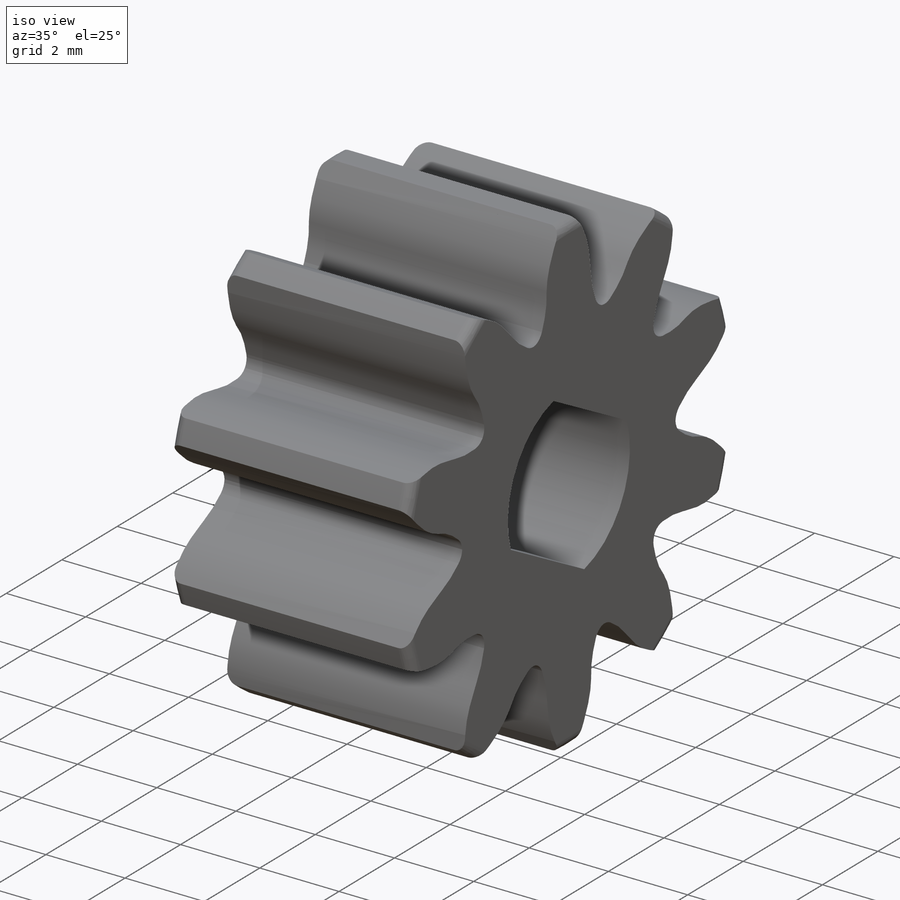
[diagram: iso view]
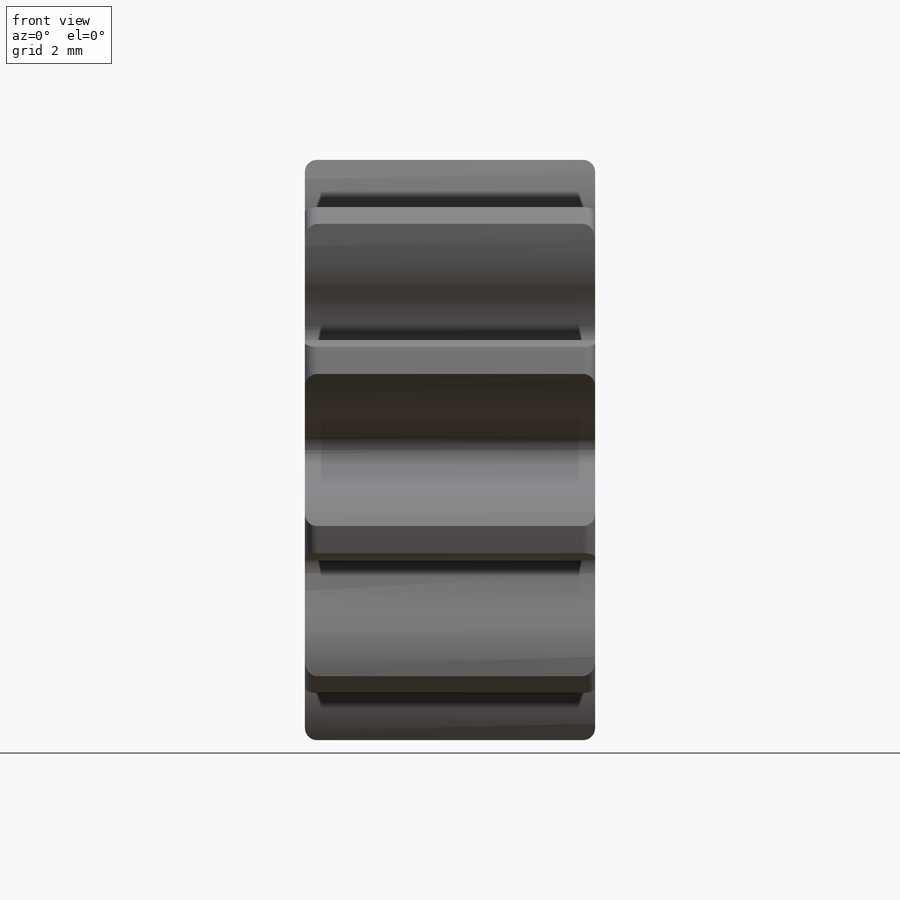
[diagram: front view]
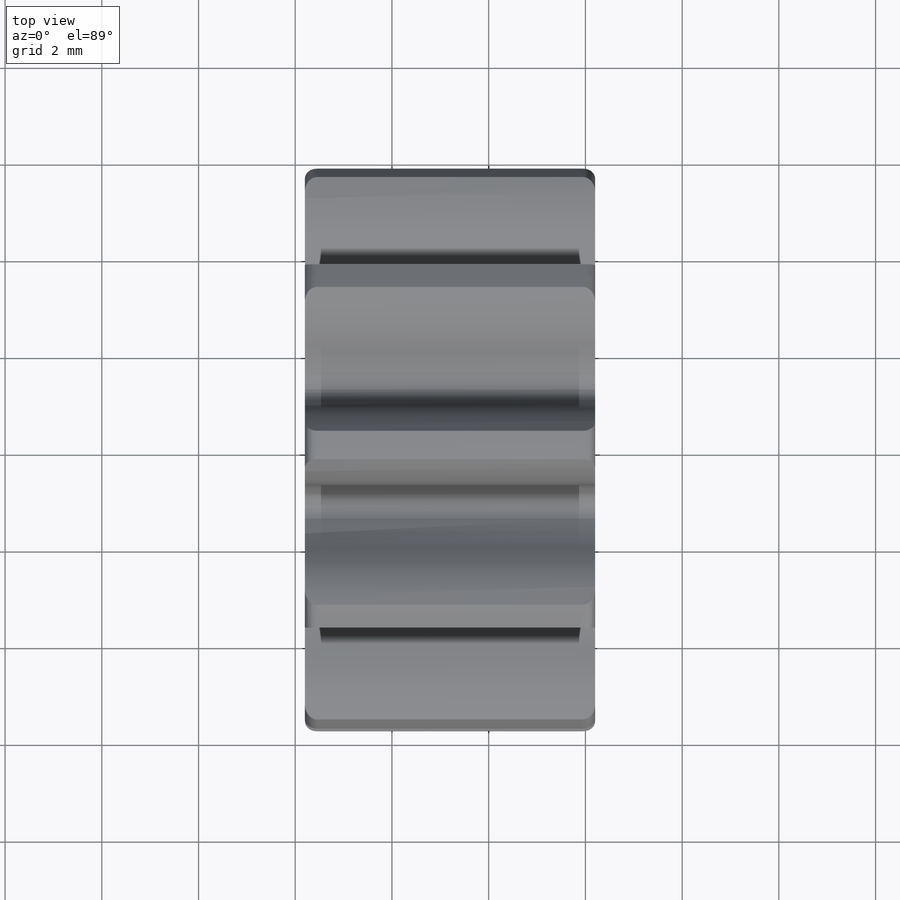
[diagram: top view]
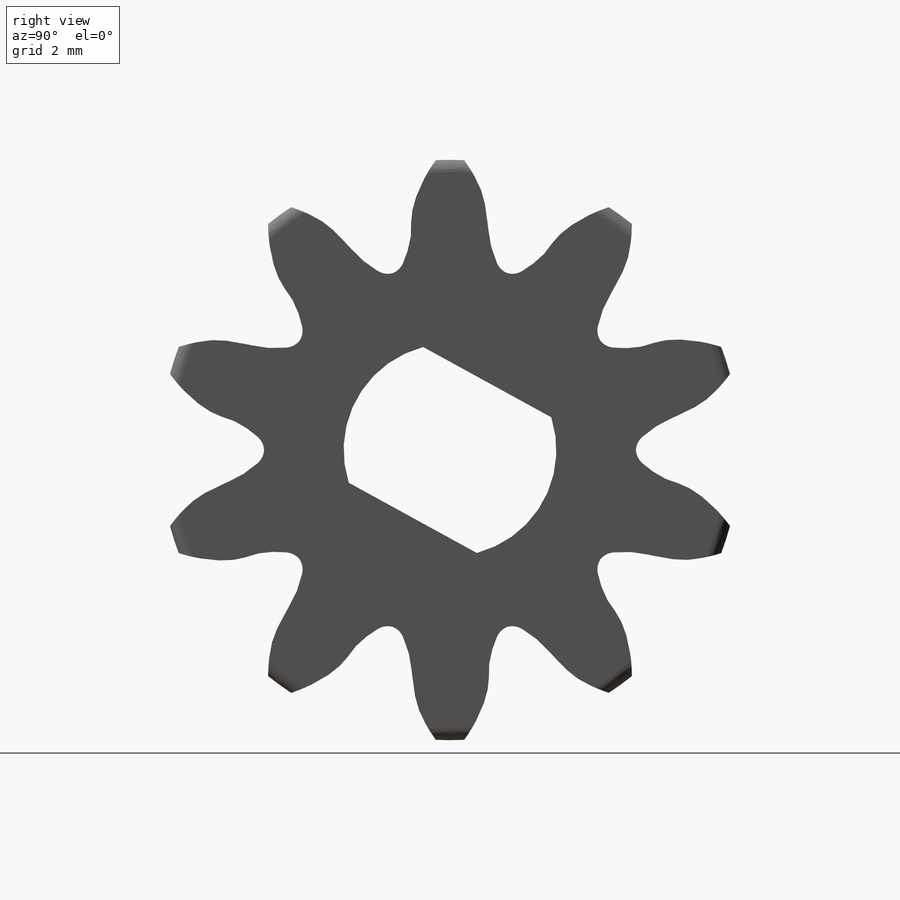
[diagram: right view]
SOLIDWORKS PART (.sldprt)
format: sldprt  version: not decoded by parser v0  size: 615,936 bytes
history: native  units: mm
features: sketch x12, cut_extrude x11, material x1, revolve x1, fillet x1 (+12 scaffold rows collapsed)
feature tree (38):
  scaffold x12  (default folders/planes/origin — collapsed)
  material  "ABS"
  sketch  "Sketch1"  dims[D1=2.4mm]
  revolve  "Revolve1"  Angle=360deg
  sketch  "Sketch2"
  cut_extrude  "Cut-Extrude1"  Depth=4mm
  sketch  "Sketch3"
  cut_extrude  "Cut-Extrude2"  Depth=4mm
  sketch  "Sketch4"
  cut_extrude  "Cut-Extrude3"  Depth=4mm
  sketch  "Sketch5"
  cut_extrude  "Cut-Extrude4"  Depth=4mm
  sketch  "Sketch6"
  cut_extrude  "Cut-Extrude5"  Depth=4mm
  sketch  "Sketch7"
  cut_extrude  "Cut-Extrude6"  Depth=4mm
  sketch  "Sketch8"
  cut_extrude  "Cut-Extrude7"  Depth=4mm
  sketch  "Sketch9"
  cut_extrude  "Cut-Extrude8"  Depth=4mm
  sketch  "Sketch10"
  cut_extrude  "Cut-Extrude9"  Depth=4mm
  sketch  "Sketch11"
  cut_extrude  "Cut-Extrude10"  Depth=4mm
  fillet  "Fillet1"  Radius=0.1mm
  sketch  "Sketch14"  dims[D1=4.4mm D2=3.2mm]
  cut_extrude  "Cut-Extrude11"  [1 undecoded]
decode coverage: 14 of 25 modeling features carry decoded parameters
note: 1 parameter value undecoded
note: suppression state not decoded; provenance and decode notes live in map.json
